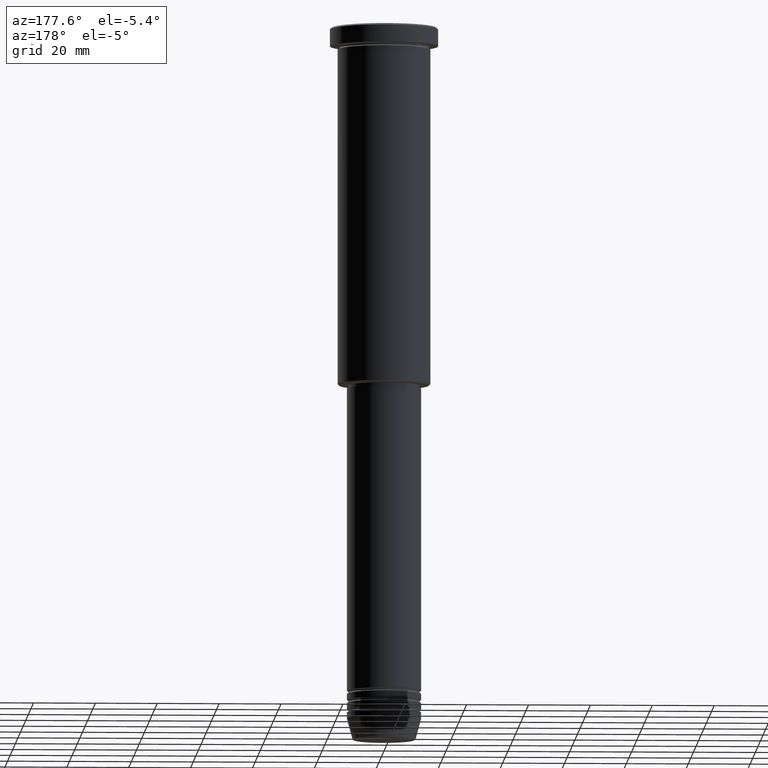
[diagram: clean part render]
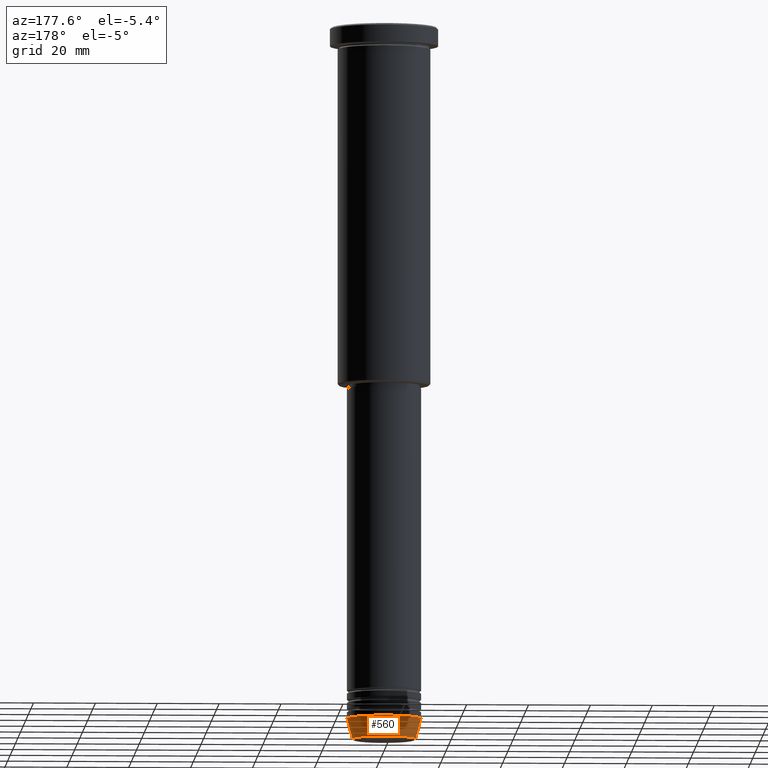
[diagram: same view with one face highlighted and labeled with its STEP entity id]
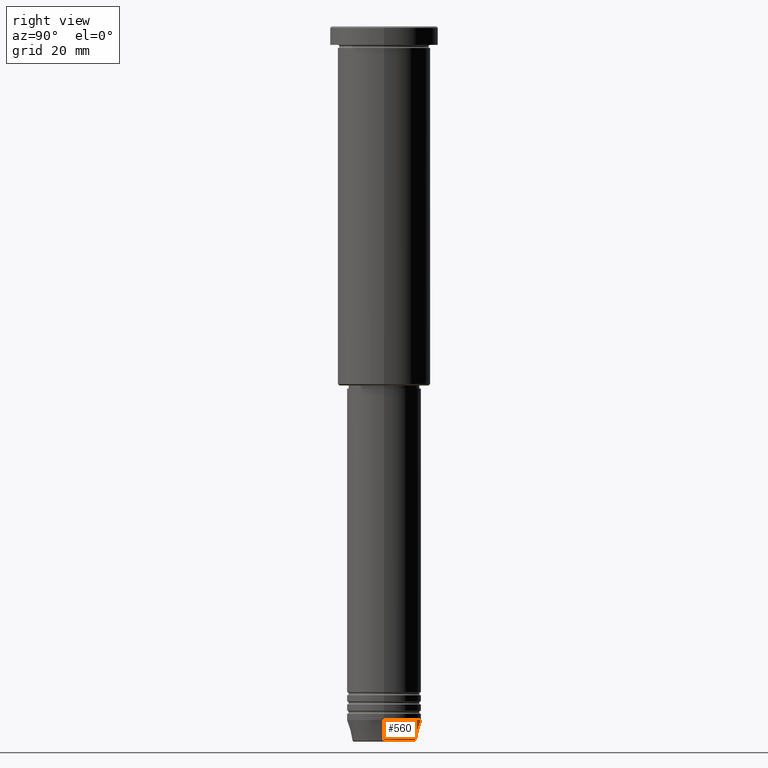
[diagram: same view with one face highlighted and labeled with its STEP entity id]
A machine part, auxiliary view. The second image highlights one B-rep face of the part: STEP entity #560.
A second angle (right view) of the same face is appended — the face is thin or edge-on in the first view.
In plain terms, the highlighted conical surface has half-angle 15 deg.
Its self-contained STEP definition (entity closure, byte-faithful):
#18 = DIRECTION ( 'NONE',  ( -0.2588190451025213501, 3.169619151431772337E-17, 0.9659258262890680902 ) ) ;
#23 = ORIENTED_EDGE ( 'NONE', *, *, #607, .T. ) ;
#53 = CARTESIAN_POINT ( 'NONE',  ( 10.22365507213718949, 0.000000000000000000, -230.6294095225512422 ) ) ;
#145 = CARTESIAN_POINT ( 'NONE',  ( 0.000000000000000000, 0.000000000000000000, -230.6294095225512422 ) ) ;
#153 = CARTESIAN_POINT ( 'NONE',  ( -12.00000000000000000, 1.469576158976823947E-15, -224.0000000000000000 ) ) ;
#156 = DIRECTION ( 'NONE',  ( 1.000000000000000000, 0.000000000000000000, 0.000000000000000000 ) ) ;
#175 = CONICAL_SURFACE ( 'NONE', #442, 12.00000000000000000, 0.2617993877991500740 ) ;
#197 = LINE ( 'NONE', #1032, #305 ) ;
#248 = EDGE_LOOP ( 'NONE', ( #23, #329, #469, #1029 ) ) ;
#256 = EDGE_CURVE ( 'NONE', #488, #826, #431, .T. ) ;
#274 = EDGE_CURVE ( 'NONE', #1014, #826, #197, .T. ) ;
#305 = VECTOR ( 'NONE', #18, 1000.000000000000000 ) ;
#329 = ORIENTED_EDGE ( 'NONE', *, *, #274, .T. ) ;
#395 = CARTESIAN_POINT ( 'NONE',  ( -10.22365507213718949, 1.360806402472382547E-15, -230.6294095225512422 ) ) ;
#431 = CIRCLE ( 'NONE', #812, 12.00000000000000000 ) ;
#442 = AXIS2_PLACEMENT_3D ( 'NONE', #824, #731, #1075 ) ;
#453 = DIRECTION ( 'NONE',  ( -0.000000000000000000, -0.000000000000000000, 1.000000000000000000 ) ) ;
#469 = ORIENTED_EDGE ( 'NONE', *, *, #256, .F. ) ;
#471 = FACE_OUTER_BOUND ( 'NONE', #248, .T. ) ;
#479 = CARTESIAN_POINT ( 'NONE',  ( 12.00000000000000000, 0.000000000000000000, -224.0000000000000000 ) ) ;
#488 = VERTEX_POINT ( 'NONE', #479 ) ;
#491 = LINE ( 'NONE', #855, #1025 ) ;
#560 = ADVANCED_FACE ( 'NONE', ( #471 ), #175, .T. ) ;
#590 = VERTEX_POINT ( 'NONE', #53 ) ;
#607 = EDGE_CURVE ( 'NONE', #590, #1014, #664, .T. ) ;
#664 = CIRCLE ( 'NONE', #847, 10.22365507213718949 ) ;
#714 = EDGE_CURVE ( 'NONE', #590, #488, #491, .T. ) ;
#731 = DIRECTION ( 'NONE',  ( -0.000000000000000000, -0.000000000000000000, 1.000000000000000000 ) ) ;
#758 = DIRECTION ( 'NONE',  ( 0.2588190451025213501, 0.000000000000000000, 0.9659258262890680902 ) ) ;
#812 = AXIS2_PLACEMENT_3D ( 'NONE', #982, #1154, #156 ) ;
#824 = CARTESIAN_POINT ( 'NONE',  ( 0.000000000000000000, 0.000000000000000000, -224.0000000000000000 ) ) ;
#826 = VERTEX_POINT ( 'NONE', #153 ) ;
#847 = AXIS2_PLACEMENT_3D ( 'NONE', #145, #453, #1133 ) ;
#855 = CARTESIAN_POINT ( 'NONE',  ( 12.00000000000000000, 0.000000000000000000, -224.0000000000000000 ) ) ;
#982 = CARTESIAN_POINT ( 'NONE',  ( 0.000000000000000000, 0.000000000000000000, -224.0000000000000000 ) ) ;
#1014 = VERTEX_POINT ( 'NONE', #395 ) ;
#1025 = VECTOR ( 'NONE', #758, 1000.000000000000000 ) ;
#1029 = ORIENTED_EDGE ( 'NONE', *, *, #714, .F. ) ;
#1032 = CARTESIAN_POINT ( 'NONE',  ( -12.00000000000000000, 1.469576158976823947E-15, -224.0000000000000000 ) ) ;
#1075 = DIRECTION ( 'NONE',  ( 1.000000000000000000, 0.000000000000000000, 0.000000000000000000 ) ) ;
#1133 = DIRECTION ( 'NONE',  ( 1.000000000000000000, 0.000000000000000000, 0.000000000000000000 ) ) ;
#1154 = DIRECTION ( 'NONE',  ( -0.000000000000000000, -0.000000000000000000, 1.000000000000000000 ) ) ;